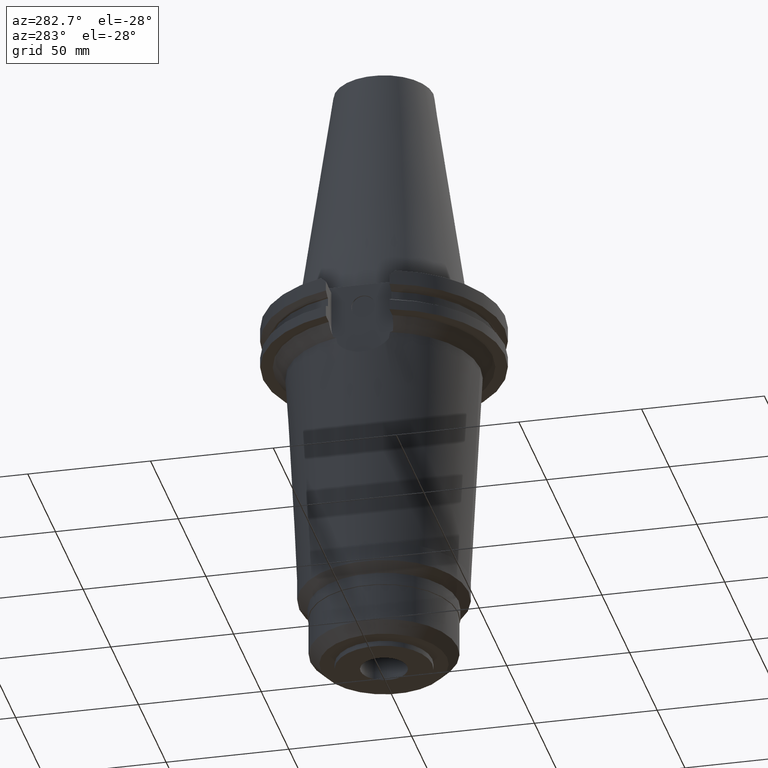
[diagram: clean part render]
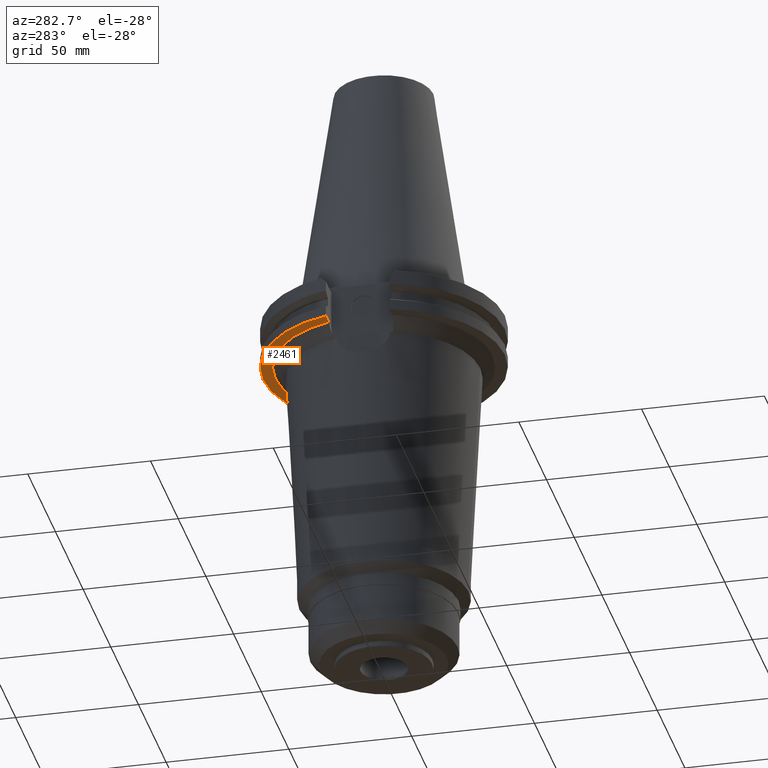
[diagram: same view with one face highlighted and labeled with its STEP entity id]
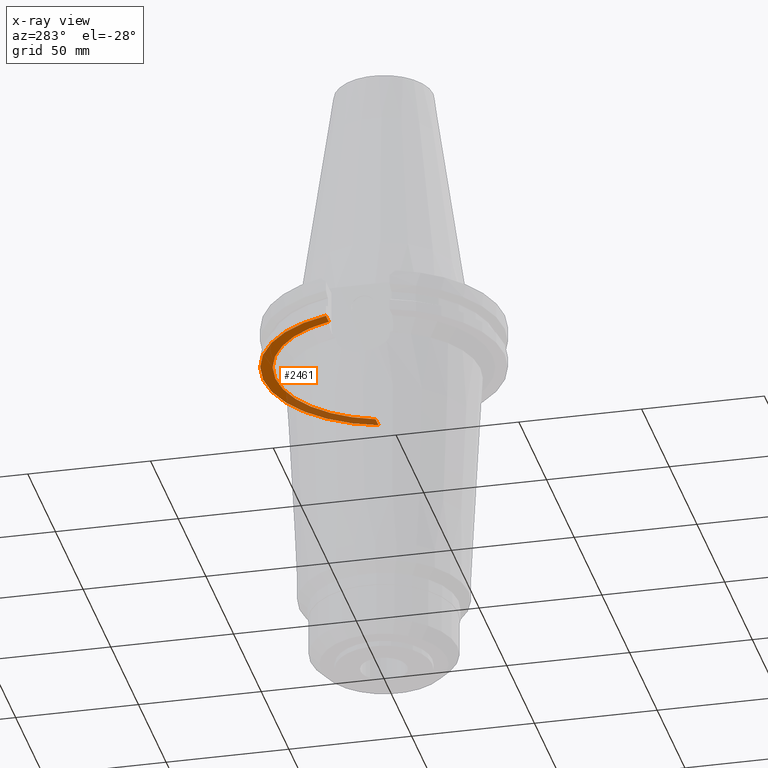
[diagram: x-ray of the same camera — body ghosted, the highlighted face saturated]
A machine part, auxiliary view. The second image highlights one B-rep face of the part: STEP entity #2461.
The next image is the same camera in x-ray: the body ghosted, the highlighted face saturated — about 36% of this face is hidden behind the body in this view.
In plain terms, the highlighted planar face has unit normal (0, 0, -1).
Its self-contained STEP definition (entity closure, byte-faithful):
#258=CARTESIAN_POINT('',(4.230356949807E1,1.2955E1,-1.905E1));
#851=DIRECTION('',(-1.E0,0.E0,0.E0));
#852=VECTOR('',#851,5.173124356847E0);
#853=CARTESIAN_POINT('',(-4.230358710519E1,1.2955E1,-1.905E1));
#854=LINE('',#853,#852);
#887=DIRECTION('',(1.E0,0.E0,0.E0));
#888=VECTOR('',#887,5.173141963969E0);
#889=CARTESIAN_POINT('',(4.230356949807E1,1.2955E1,-1.905E1));
#890=LINE('',#889,#888);
#894=CARTESIAN_POINT('',(0.E0,1.401240867584E-14,-1.905E1));
#895=DIRECTION('',(0.E0,0.E0,1.E0));
#896=DIRECTION('',(9.647287063661E-1,2.632461264923E-1,0.E0));
#897=AXIS2_PLACEMENT_3D('',#894,#895,#896);
#902=CARTESIAN_POINT('',(0.E0,1.401240867584E-14,-1.905E1));
#903=DIRECTION('',(0.E0,0.E0,1.E0));
#904=DIRECTION('',(0.E0,1.E0,0.E0));
#905=AXIS2_PLACEMENT_3D('',#902,#903,#904);
#910=CARTESIAN_POINT('',(0.E0,0.E0,-1.905E1));
#911=DIRECTION('',(0.E0,0.E0,-1.E0));
#912=DIRECTION('',(-9.561688782856E-1,2.928157717713E-1,0.E0));
#913=AXIS2_PLACEMENT_3D('',#910,#911,#912);
#918=CARTESIAN_POINT('',(0.E0,0.E0,-1.905E1));
#919=DIRECTION('',(0.E0,0.E0,-1.E0));
#920=DIRECTION('',(0.E0,1.E0,0.E0));
#921=AXIS2_PLACEMENT_3D('',#918,#919,#920);
#1773=VERTEX_POINT('',#258);
#1774=CARTESIAN_POINT('',(5.869117480737E-14,4.424278491775E1,-1.905E1));
#1775=VERTEX_POINT('',#1774);
#1776=CARTESIAN_POINT('',(-4.230357402704E1,1.295498521100E1,-1.905E1));
#1777=VERTEX_POINT('',#1776);
#1788=CARTESIAN_POINT('',(4.747671146204E1,1.2955E1,-1.905E1));
#1789=VERTEX_POINT('',#1788);
#1832=CARTESIAN_POINT('',(-4.747671146204E1,1.2955E1,-1.905E1));
#1833=VERTEX_POINT('',#1832);
#1834=CARTESIAN_POINT('',(0.E0,4.92125E1,-1.905E1));
#1835=VERTEX_POINT('',#1834);
#2446=CARTESIAN_POINT('',(0.E0,0.E0,-1.905E1));
#2447=DIRECTION('',(0.E0,0.E0,-1.E0));
#2448=DIRECTION('',(0.E0,-1.E0,0.E0));
#2449=AXIS2_PLACEMENT_3D('',#2446,#2447,#2448);
#2450=PLANE('',#2449);
#2451=ORIENTED_EDGE('',*,*,#2026,.T.);
#2453=ORIENTED_EDGE('',*,*,#2452,.T.);
#2455=ORIENTED_EDGE('',*,*,#2454,.T.);
#2456=ORIENTED_EDGE('',*,*,#2423,.F.);
#2457=ORIENTED_EDGE('',*,*,#2041,.T.);
#2458=ORIENTED_EDGE('',*,*,#2039,.T.);
#2459=EDGE_LOOP('',(#2451,#2453,#2455,#2456,#2457,#2458));
#2460=FACE_OUTER_BOUND('',#2459,.F.);
#898=CIRCLE('',#897,4.92125E1);
#906=CIRCLE('',#905,4.92125E1);
#914=CIRCLE('',#913,4.424278491775E1);
#922=CIRCLE('',#921,4.424278491775E1);
#2026=EDGE_CURVE('',#1773,#1789,#890,.T.);
#2039=EDGE_CURVE('',#1775,#1773,#922,.T.);
#2041=EDGE_CURVE('',#1777,#1775,#914,.T.);
#2423=EDGE_CURVE('',#1777,#1833,#854,.T.);
#2452=EDGE_CURVE('',#1789,#1835,#898,.T.);
#2454=EDGE_CURVE('',#1835,#1833,#906,.T.);
#2461=ADVANCED_FACE('',(#2460),#2450,.T.);